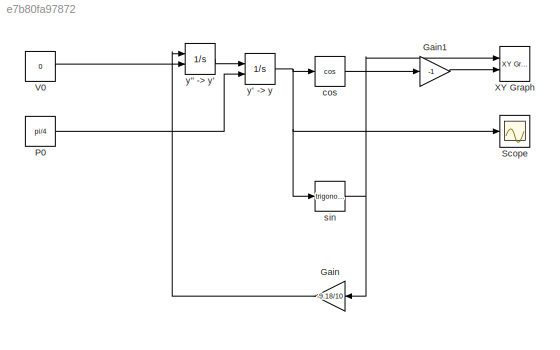
MODEL slx_e7b80fa97872
KIND model
CONFIG AbsTol = auto
CONFIG FixedStep = 0.1
CONFIG MaxStep = auto
CONFIG MinStep = auto
CONFIG RelTol = 1e-8
CONFIG SampleTimeConstraint = Unconstrained
CONFIG Solver = ode45
CONFIG SolverMode = Auto
CONFIG SolverName = ode45
CONFIG StartTime = 0.0
CONFIG StopTime = 100
BLOCK [Gain] Gain
  Gain = -9.18/10
  OutDataTypeStr = Inherit: Inherit via internal rule
  ParamDataTypeStr = Inherit: Inherit via internal rule
  SaturateOnIntegerOverflow = off
BLOCK [Gain] Gain1
  Gain = -1
  OutDataTypeStr = Inherit: Inherit via internal rule
  ParamDataTypeStr = Inherit: Inherit via internal rule
  SaturateOnIntegerOverflow = off
BLOCK [Constant] P0
  Value = pi/4
BLOCK [Scope] Scope
  Floating = off
  NumInputPorts = 1
  Ports = [1]
BLOCK [Constant] V0
  Value = 0
BLOCK [Reference] XY Graph  REF=simulink/Sinks/XY Graph
  Ports = [2]
  SourceBlock = simulink/Sinks/XY Graph
  SourceType = XY scope.
  st = -1
  xmax = 1
  xmin = -1
  ymax = 1
  ymin = -1
BLOCK [Trigonometry] cos
  Operator = cos
  Ports = [1, 1]
BLOCK [Trigonometry] sin
  Ports = [1, 1]
BLOCK [Integrator] y" -> y'
  InitialConditionSource = external
  Ports = [2, 1]
BLOCK [Integrator] y' -> y
  InitialConditionSource = external
  Ports = [2, 1]
LINE Gain1:1 -> XY Graph:2
LINE Gain:1 -> y" -> y':1
LINE P0:1 -> y' -> y:2
LINE V0:1 -> y" -> y':2
LINE cos:1 -> Gain1:1
NET sin:1 -> Gain:1, XY Graph:1
LINE y" -> y':1 -> y' -> y:1
NET y' -> y:1 -> Scope:1, cos:1, sin:1
note: NET lines group one-source signal fan-out (src -> all destinations, sorted); 1:1 wires keep LINE
